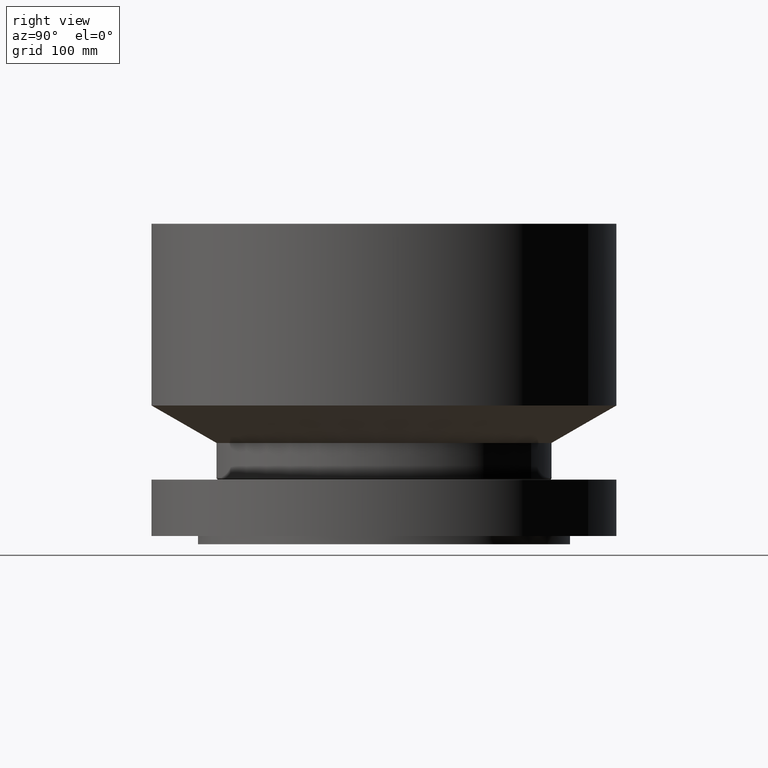
[diagram: clean part render]
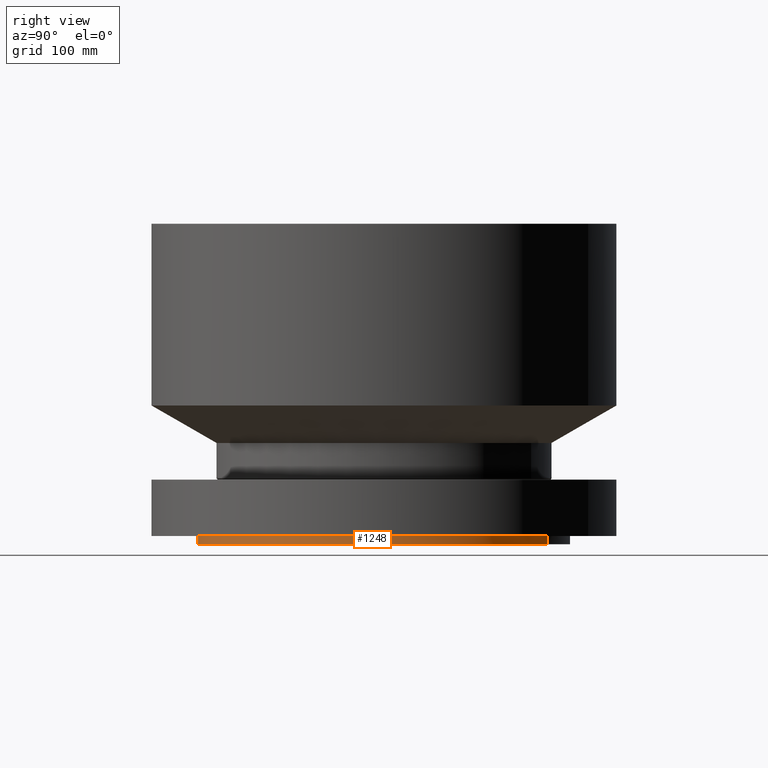
[diagram: same view with one face highlighted and labeled with its STEP entity id]
A machine part, right view. The second image highlights one B-rep face of the part: STEP entity #1248.
In plain terms, the highlighted cylindrical surface (partial cylindrical patch) has radius 177.8 mm, axis along (0, 0, -1).
Its self-contained STEP definition (entity closure, byte-faithful):
#126=AXIS2_PLACEMENT_3D('Circle Axis2P3D',#124,#125,$) ;
#133=AXIS2_PLACEMENT_3D('Circle Axis2P3D',#131,#132,$) ;
#140=AXIS2_PLACEMENT_3D('Circle Axis2P3D',#138,#139,$) ;
#147=AXIS2_PLACEMENT_3D('Circle Axis2P3D',#145,#146,$) ;
#154=AXIS2_PLACEMENT_3D('Circle Axis2P3D',#152,#153,$) ;
#224=AXIS2_PLACEMENT_3D('Circle Axis2P3D',#222,#223,$) ;
#231=AXIS2_PLACEMENT_3D('Circle Axis2P3D',#229,#230,$) ;
#238=AXIS2_PLACEMENT_3D('Circle Axis2P3D',#236,#237,$) ;
#245=AXIS2_PLACEMENT_3D('Circle Axis2P3D',#243,#244,$) ;
#1192=AXIS2_PLACEMENT_3D('Circle Axis2P3D',#1190,#1191,$) ;
#1207=AXIS2_PLACEMENT_3D('Cylinder Axis2P3D',#1204,#1205,#1206) ;
#104=CARTESIAN_POINT('Vertex',(4.94974746833,-4.94974746833,0.)) ;
#124=CARTESIAN_POINT('Axis2P3D Location',(0.,0.,0.)) ;
#128=CARTESIAN_POINT('Vertex',(6.4671567276,-2.67878402657,0.)) ;
#131=CARTESIAN_POINT('Axis2P3D Location',(0.,0.,0.)) ;
#135=CARTESIAN_POINT('Vertex',(7.00000000003,7.93175445674E-015,1.1189649382E-015)) ;
#138=CARTESIAN_POINT('Axis2P3D Location',(0.,0.,0.)) ;
#142=CARTESIAN_POINT('Vertex',(6.4671567276,2.67878402657,0.)) ;
#145=CARTESIAN_POINT('Axis2P3D Location',(0.,0.,0.)) ;
#149=CARTESIAN_POINT('Vertex',(4.94974746833,4.94974746833,0.)) ;
#152=CARTESIAN_POINT('Axis2P3D Location',(0.,0.,0.)) ;
#156=CARTESIAN_POINT('Vertex',(3.35597877024,6.14307793326,1.1189649382E-015)) ;
#219=CARTESIAN_POINT('Vertex',(-3.35597877024,-6.14307793326,1.1189649382E-015)) ;
#222=CARTESIAN_POINT('Axis2P3D Location',(0.,0.,0.)) ;
#226=CARTESIAN_POINT('Vertex',(-2.67878402657,-6.4671567276,0.)) ;
#229=CARTESIAN_POINT('Axis2P3D Location',(0.,0.,0.)) ;
#233=CARTESIAN_POINT('Vertex',(-1.02396964971E-015,-7.00000000003,0.)) ;
#236=CARTESIAN_POINT('Axis2P3D Location',(0.,0.,0.)) ;
#240=CARTESIAN_POINT('Vertex',(2.67878402657,-6.4671567276,0.)) ;
#243=CARTESIAN_POINT('Axis2P3D Location',(0.,0.,0.)) ;
#1185=CARTESIAN_POINT('Vertex',(-3.35597877024,-6.14307793326,-0.313000000001)) ;
#1187=CARTESIAN_POINT('Vertex',(3.35597877024,6.14307793326,-0.313000000001)) ;
#1190=CARTESIAN_POINT('Axis2P3D Location',(0.,0.,-0.313000000001)) ;
#1204=CARTESIAN_POINT('Axis2P3D Location',(0.,0.,5.71850000002)) ;
#1209=CARTESIAN_POINT('Line Origine',(-3.35597877024,-6.14307793326,-0.156500000001)) ;
#1214=CARTESIAN_POINT('Line Origine',(3.35597877024,6.14307793326,-0.156500000001)) ;
#125=DIRECTION('Axis2P3D Direction',(0.,0.,-0.0393700787402)) ;
#132=DIRECTION('Axis2P3D Direction',(0.,0.,-0.0393700787402)) ;
#139=DIRECTION('Axis2P3D Direction',(0.,0.,-0.0393700787402)) ;
#146=DIRECTION('Axis2P3D Direction',(0.,0.,-0.0393700787402)) ;
#153=DIRECTION('Axis2P3D Direction',(0.,0.,-0.0393700787402)) ;
#223=DIRECTION('Axis2P3D Direction',(0.,0.,-0.0393700787402)) ;
#230=DIRECTION('Axis2P3D Direction',(0.,0.,-0.0393700787402)) ;
#237=DIRECTION('Axis2P3D Direction',(0.,0.,-0.0393700787402)) ;
#244=DIRECTION('Axis2P3D Direction',(0.,0.,-0.0393700787402)) ;
#1191=DIRECTION('Axis2P3D Direction',(0.,0.,-0.0393700787402)) ;
#1205=DIRECTION('Axis2P3D Direction',(0.,0.,-0.0393700787402)) ;
#1206=DIRECTION('Axis2P3D XDirection',(0.0188750212049,0.0345504945626,0.)) ;
#1210=DIRECTION('Vector Direction',(0.,0.,-0.0393700787402)) ;
#1215=DIRECTION('Vector Direction',(0.,0.,-0.0393700787402)) ;
#1211=VECTOR('Line Direction',#1210,0.0393700787402) ;
#1216=VECTOR('Line Direction',#1215,0.0393700787402) ;
#1235=ORIENTED_EDGE('',*,*,#1194,.F.) ;
#1236=ORIENTED_EDGE('',*,*,#1218,.T.) ;
#1237=ORIENTED_EDGE('',*,*,#158,.T.) ;
#1238=ORIENTED_EDGE('',*,*,#151,.T.) ;
#1239=ORIENTED_EDGE('',*,*,#144,.T.) ;
#1240=ORIENTED_EDGE('',*,*,#137,.T.) ;
#1241=ORIENTED_EDGE('',*,*,#130,.T.) ;
#1242=ORIENTED_EDGE('',*,*,#247,.T.) ;
#1243=ORIENTED_EDGE('',*,*,#242,.T.) ;
#1244=ORIENTED_EDGE('',*,*,#235,.T.) ;
#1245=ORIENTED_EDGE('',*,*,#228,.T.) ;
#1246=ORIENTED_EDGE('',*,*,#1213,.F.) ;
#1248=ADVANCED_FACE('PartBody',(#1247),#1208,.T.) ;
#127=CIRCLE('generated circle',#126,7.00000000003) ;
#134=CIRCLE('generated circle',#133,7.00000000003) ;
#141=CIRCLE('generated circle',#140,7.00000000003) ;
#148=CIRCLE('generated circle',#147,7.00000000003) ;
#155=CIRCLE('generated circle',#154,7.00000000003) ;
#225=CIRCLE('generated circle',#224,7.00000000003) ;
#232=CIRCLE('generated circle',#231,7.00000000003) ;
#239=CIRCLE('generated circle',#238,7.00000000003) ;
#246=CIRCLE('generated circle',#245,7.00000000003) ;
#1193=CIRCLE('generated circle',#1192,7.00000000003) ;
#1208=CYLINDRICAL_SURFACE('generated cylinder',#1207,7.00000000003) ;
#130=EDGE_CURVE('',#129,#105,#127,.T.) ;
#137=EDGE_CURVE('',#136,#129,#134,.T.) ;
#144=EDGE_CURVE('',#143,#136,#141,.T.) ;
#151=EDGE_CURVE('',#150,#143,#148,.T.) ;
#158=EDGE_CURVE('',#157,#150,#155,.T.) ;
#228=EDGE_CURVE('',#227,#220,#225,.T.) ;
#235=EDGE_CURVE('',#234,#227,#232,.T.) ;
#242=EDGE_CURVE('',#241,#234,#239,.T.) ;
#247=EDGE_CURVE('',#105,#241,#246,.T.) ;
#1194=EDGE_CURVE('',#1188,#1186,#1193,.T.) ;
#1213=EDGE_CURVE('',#1186,#220,#1212,.F.) ;
#1218=EDGE_CURVE('',#1188,#157,#1217,.F.) ;
#1234=EDGE_LOOP('',(#1235,#1236,#1237,#1238,#1239,#1240,#1241,#1242,#1243,#1244,#1245,#1246)) ;
#1247=FACE_OUTER_BOUND('',#1234,.T.) ;
#1212=LINE('Line',#1209,#1211) ;
#1217=LINE('Line',#1214,#1216) ;
#105=VERTEX_POINT('',#104) ;
#129=VERTEX_POINT('',#128) ;
#136=VERTEX_POINT('',#135) ;
#143=VERTEX_POINT('',#142) ;
#150=VERTEX_POINT('',#149) ;
#157=VERTEX_POINT('',#156) ;
#220=VERTEX_POINT('',#219) ;
#227=VERTEX_POINT('',#226) ;
#234=VERTEX_POINT('',#233) ;
#241=VERTEX_POINT('',#240) ;
#1186=VERTEX_POINT('',#1185) ;
#1188=VERTEX_POINT('',#1187) ;